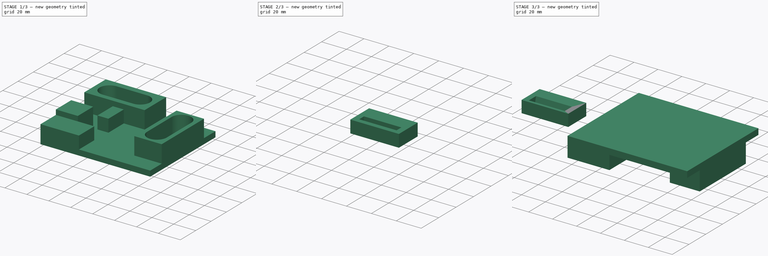
[diagram: build sequence overview — one tinted view per stage of 3, left to right]
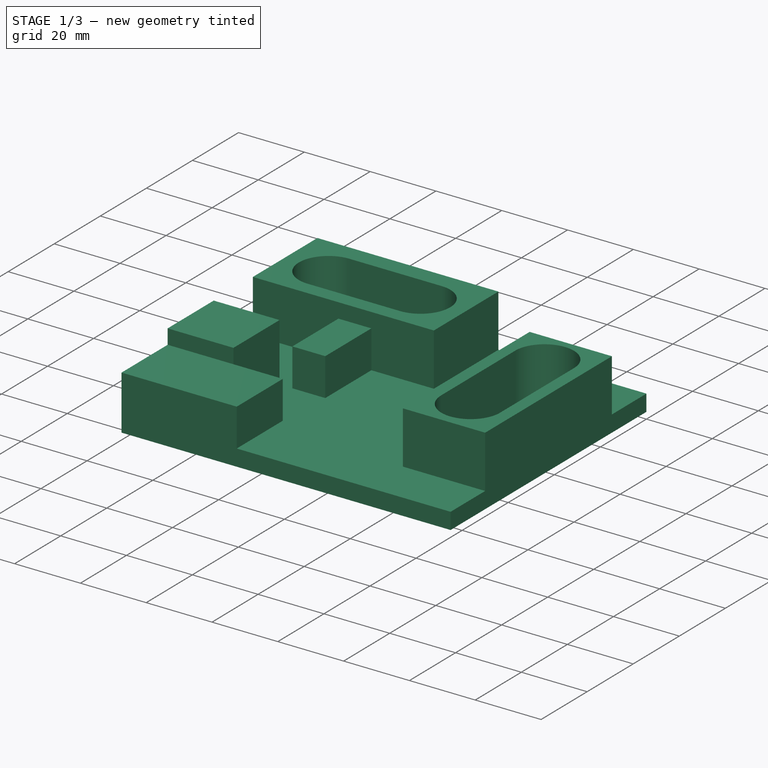
[diagram: stage 1 of 3 — iso view after this stage's code; geometry added in this stage tinted green]
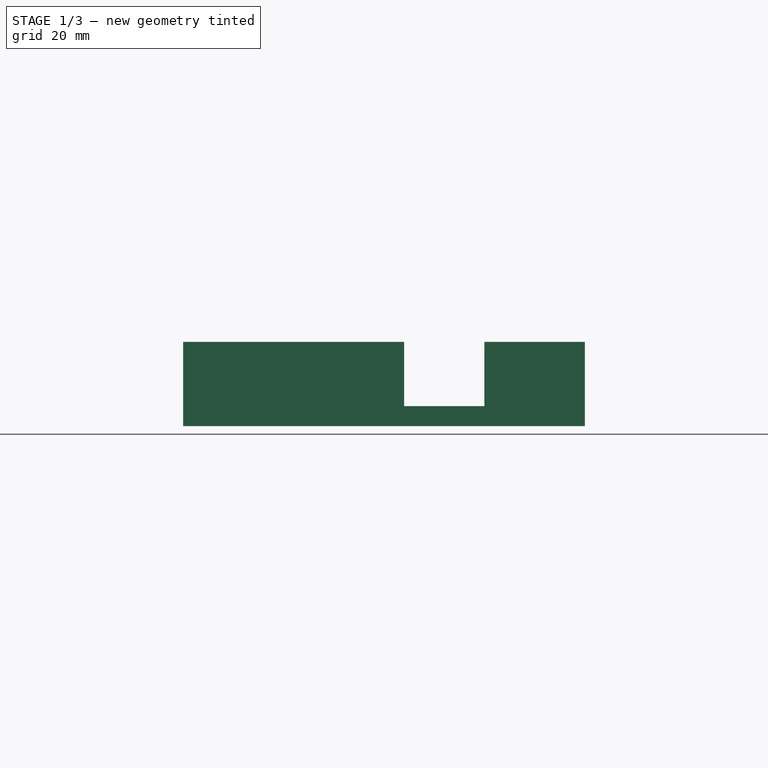
[diagram: stage 1 of 3 — front view after this stage's code; geometry added in this stage tinted green]
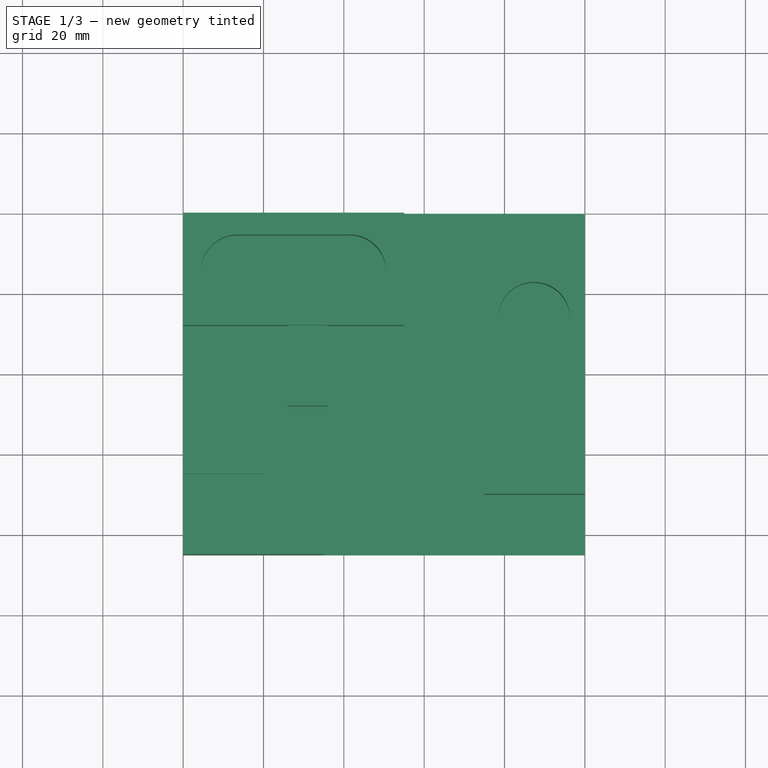
[diagram: stage 1 of 3 — top view after this stage's code; geometry added in this stage tinted green]
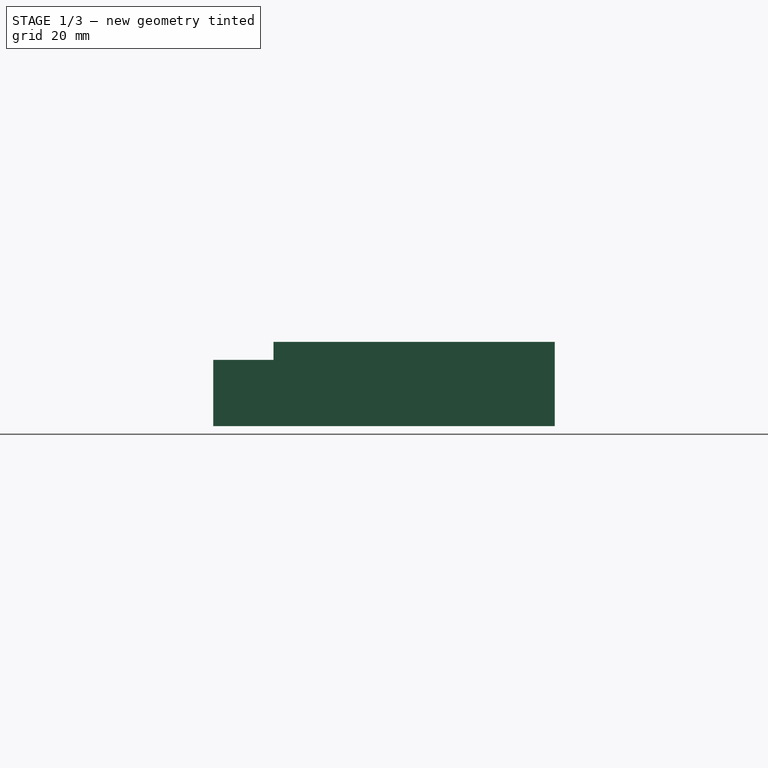
[diagram: stage 1 of 3 — right view after this stage's code; geometry added in this stage tinted green]
FCSTD DOCUMENT  (FreeCAD 0.19R24276 (Git))
Label: SMC Gateway Expansion soldering stand
License: All rights reserved
LicenseURL: http://en.wikipedia.org/wiki/All_rights_reserved
objects: Sketcher::SketchObject×5, PartDesign::Pad×4, PartDesign::Body×2, Part::Mirroring×2, PartDesign::Pocket×1, PartDesign::Chamfer×1
note: 21 computed .brp shape members not serialized (recipe doc carries the construction recipe); baked Part::Feature solids carry a one-line shape summary decoded from their .brp

FEATURE [Sketcher::SketchObject] Sketch
  FullyConstrained = true
  MapMode = 5
  Support = -> [XY_Plane]
  sketch-geometry (4):
    g0: LineSegment StartX=0 StartY=0 StartZ=0 EndX=100 EndY=0 EndZ=0
    g1: LineSegment StartX=100 StartY=0 StartZ=0 EndX=100 EndY=-85 EndZ=0
    g2: LineSegment StartX=100 StartY=-85 StartZ=0 EndX=0 EndY=-85 EndZ=0
    g3: LineSegment StartX=0 StartY=-85 StartZ=0 EndX=0 EndY=0 EndZ=0
  constraints (11):
    c: Coincident(g0,g1)
    c: Coincident(g1,g2)
    c: Coincident(g2,g3)
    c: Coincident(g3,g0)
    c: Horizontal(g0)
    c: Horizontal(g2)
    c: Vertical(g1)
    c: Vertical(g3)
    c: Coincident(g0,g-1)
    c: Distance(g0) = 100
    c: Distance(g1) = 85
FEATURE [PartDesign::Pad] Pad
  Direction = (1,1,1)
  Length = 5
  Length2 = 100
  Profile = -> Sketch
  Reversed = true
  Type = 0
FEATURE [Sketcher::SketchObject] Sketch001
  ExternalGeometry = -> [Pad]
  FullyConstrained = false
  MapMode = 5
  Support = -> [XY_Plane]
  sketch-geometry (20):
    g0: LineSegment StartX=0 StartY=0 StartZ=0 EndX=55 EndY=0 EndZ=0
    g1: LineSegment StartX=55 StartY=0 StartZ=0 EndX=55 EndY=-28 EndZ=0
    g2: LineSegment StartX=55 StartY=-28 StartZ=0 EndX=0 EndY=-28 EndZ=0
    g3: LineSegment StartX=0 StartY=-28 StartZ=0 EndX=0 EndY=0 EndZ=0
    g4: LineSegment StartX=75 StartY=-15 StartZ=0 EndX=100 EndY=-15 EndZ=0
    g5: LineSegment StartX=100 StartY=-15 StartZ=0 EndX=100 EndY=-70 EndZ=0
    g6: LineSegment StartX=100 StartY=-70 StartZ=0 EndX=75 EndY=-70 EndZ=0
    g7: LineSegment StartX=75 StartY=-70 StartZ=0 EndX=75 EndY=-15 EndZ=0
    g8: LineSegment StartX=0 StartY=-45 StartZ=0 EndX=20 EndY=-45 EndZ=0
    g9: LineSegment StartX=20 StartY=-45 StartZ=0 EndX=20 EndY=-65 EndZ=0
    g10: LineSegment StartX=20 StartY=-65 StartZ=0 EndX=0 EndY=-65 EndZ=0
    g11: LineSegment StartX=0 StartY=-65 StartZ=0 EndX=0 EndY=-45 EndZ=0
    g12: ArcOfCircle CenterX=13.4924 CenterY=-14.4585 CenterZ=0 NormalX=0 NormalY=0 NormalZ=1 AngleXU=0 Radius=9 StartAngle=1.5708 EndAngle=4.71239
    g13: ArcOfCircle CenterX=41.4924 CenterY=-14.4585 CenterZ=0 NormalX=0 NormalY=0 NormalZ=1 AngleXU=0 Radius=9 StartAngle=4.71239 EndAngle=7.85398
    g14: LineSegment StartX=13.4924 StartY=-23.4585 StartZ=0 EndX=41.4924 EndY=-23.4585 EndZ=0
    g15: LineSegment StartX=13.4924 StartY=-5.45847 StartZ=0 EndX=41.4924 EndY=-5.45847 EndZ=0
    g16: ArcOfCircle CenterX=87.3434 CenterY=-26.1755 CenterZ=0 NormalX=0 NormalY=0 NormalZ=1 AngleXU=0 Radius=8.93589 StartAngle=2e-16 EndAngle=3.14159
    g17: ArcOfCircle CenterX=87.3434 CenterY=-58.1977 CenterZ=0 NormalX=0 NormalY=0 NormalZ=1 AngleXU=0 Radius=8.93589 StartAngle=3.14159 EndAngle=6.28319
    g18: LineSegment StartX=78.4075 StartY=-26.1755 StartZ=0 EndX=78.4075 EndY=-58.1977 EndZ=0
    g19: LineSegment StartX=96.2793 StartY=-26.1755 StartZ=0 EndX=96.2793 EndY=-58.1977 EndZ=0
  constraints (49):
    c: Coincident(g0,g1)
    c: Coincident(g1,g2)
    c: Coincident(g2,g3)
    c: Coincident(g3,g0)
    c: Horizontal(g0)
    c: Horizontal(g2)
    c: Vertical(g1)
    c: Vertical(g3)
    c: Coincident(g0,g-1)
    c: Distance(g0) = 55
    c: Distance(g1) = 28
    c: Coincident(g4,g5)
    c: Coincident(g5,g6)
    c: Coincident(g6,g7)
    c: Coincident(g7,g4)
    c: Horizontal(g4)
    c: Horizontal(g6)
    c: Vertical(g5)
    c: Vertical(g7)
    c: DistanceY(g4,g-3) = 15
    c: Distance(g5) = 55
    c: Distance(g6) = 25
    c: Vertical(g-3,g4)
    c: Coincident(g8,g9)
    c: Coincident(g9,g10)
    c: Coincident(g10,g11)
    c: Coincident(g11,g8)
    c: Horizontal(g8)
    c: Horizontal(g10)
    c: Vertical(g9)
    c: Vertical(g11)
    c: PointOnObject(g8,g-2)
    c: Distance(g8) = 20
    c: Distance(g9) = 20
    c: DistanceY(g8,g0) = 45
    c: Tangent(g12,g15) = 1.5708
    c: Tangent(g12,g14) = -1.5708
    c: Tangent(g14,g13) = -1.5708
    c: Tangent(g15,g13) = 1.5708
    c: Horizontal(g14)
    c: Equal(g12,g13)
    c: Distance(g12,g12) = 18
    c: Distance(g12,g13) = 28
    c: Tangent(g16,g19) = 1.5708
    c: Tangent(g16,g18) = -1.5708
    c: Tangent(g18,g17) = -1.5708
    c: Tangent(g19,g17) = 1.5708
    c: Vertical(g18)
    c: Equal(g16,g17)
FEATURE [PartDesign::Pad] Pad001
  BaseFeature = -> Pad
  Direction = (1,1,1)
  Length = 16
  Length2 = 100
  Profile = -> Sketch001
  Type = 0
FEATURE [Sketcher::SketchObject] Sketch002
  ExternalGeometry = -> [Pad001]
  FullyConstrained = true
  MapMode = 5
  Support = -> [XY_Plane]
  sketch-geometry (8):
    g0: LineSegment StartX=0 StartY=-65 StartZ=0 EndX=35 EndY=-65 EndZ=0
    g1: LineSegment StartX=35 StartY=-65 StartZ=0 EndX=35 EndY=-85 EndZ=0
    g2: LineSegment StartX=35 StartY=-85 StartZ=0 EndX=0 EndY=-85 EndZ=0
    g3: LineSegment StartX=0 StartY=-85 StartZ=0 EndX=0 EndY=-65 EndZ=0
    g4: LineSegment StartX=26 StartY=-28 StartZ=0 EndX=36 EndY=-28 EndZ=0
    g5: LineSegment StartX=36 StartY=-28 StartZ=0 EndX=36 EndY=-48 EndZ=0
    g6: LineSegment StartX=36 StartY=-48 StartZ=0 EndX=26 EndY=-48 EndZ=0
    g7: LineSegment StartX=26 StartY=-48 StartZ=0 EndX=26 EndY=-28 EndZ=0
  constraints (23):
    c: Coincident(g0,g1)
    c: Coincident(g1,g2)
    c: Coincident(g2,g3)
    c: Coincident(g3,g0)
    c: Horizontal(g0)
    c: Horizontal(g2)
    c: Vertical(g1)
    c: Vertical(g3)
    c: Coincident(g-3,g2)
    c: Distance(g2) = 35
    c: Distance(g1) = 20
    c: Coincident(g4,g5)
    c: Coincident(g5,g6)
    c: Coincident(g6,g7)
    c: Coincident(g7,g4)
    c: Horizontal(g4)
    c: Horizontal(g6)
    c: Vertical(g5)
    c: Vertical(g7)
    c: DistanceX(g-1,g4) = 26
    c: DistanceY(g6,g-1) = 48
    c: Distance(g5) = 20
    c: Distance(g4) = 10
FEATURE [PartDesign::Pad] Pad002
  BaseFeature = -> Pad001
  Direction = (1,1,1)
  Length = 11.5
  Length2 = 100
  Profile = -> Sketch002
  Type = 0
  expr: Length = 7.5 + 4
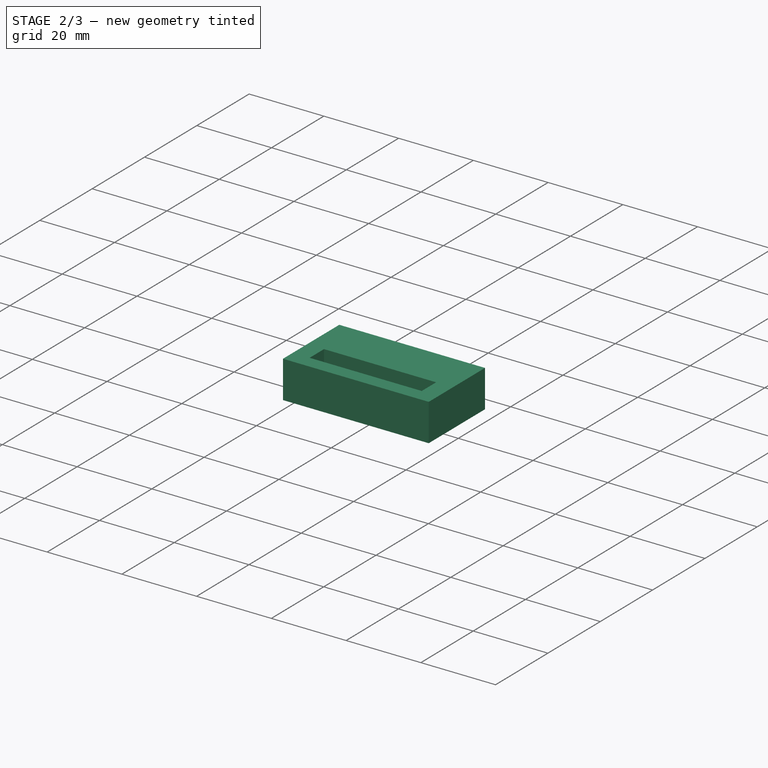
[diagram: stage 2 of 3 — iso view after this stage's code; geometry added in this stage tinted green]
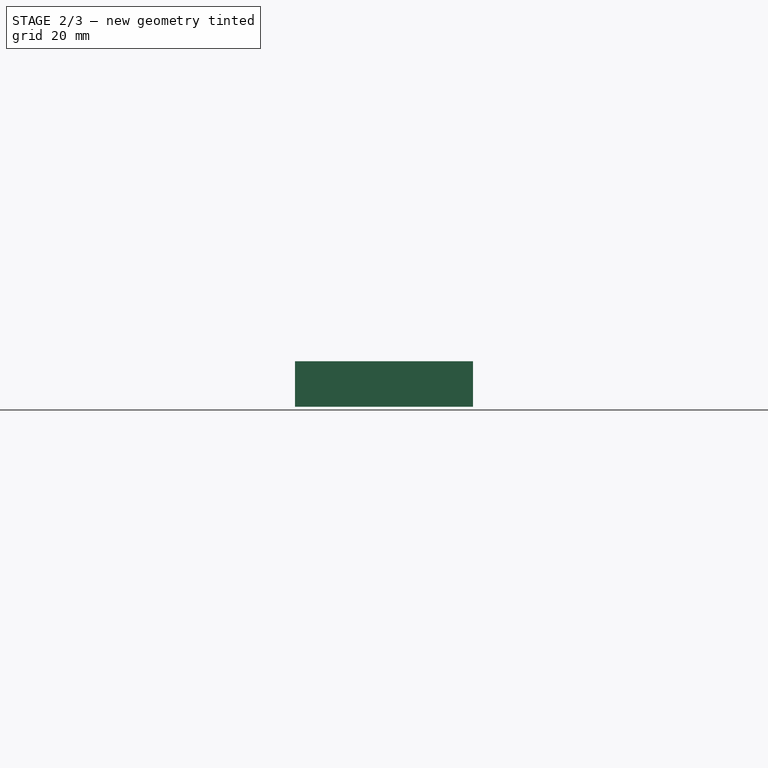
[diagram: stage 2 of 3 — front view after this stage's code; geometry added in this stage tinted green]
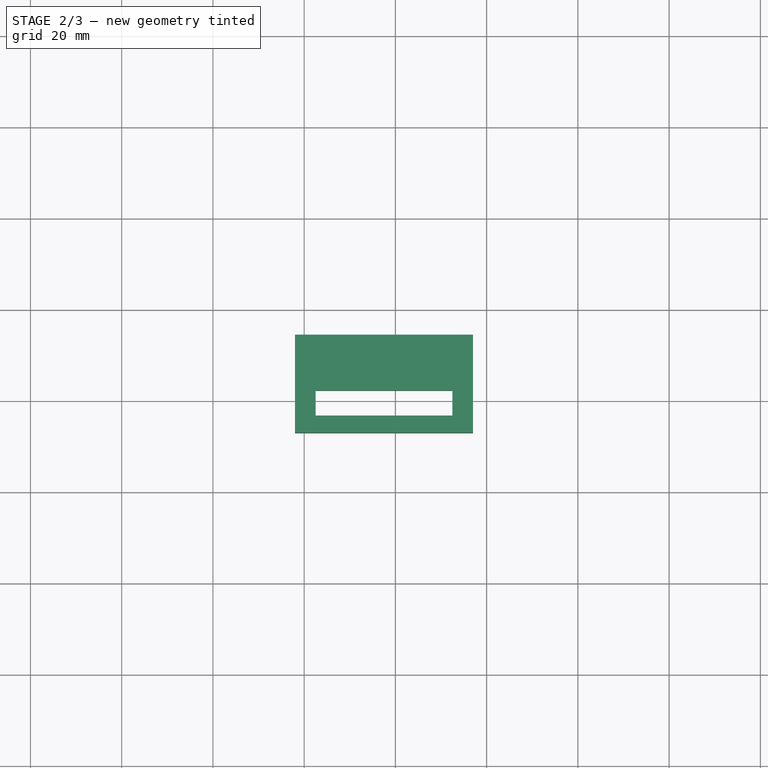
[diagram: stage 2 of 3 — top view after this stage's code; geometry added in this stage tinted green]
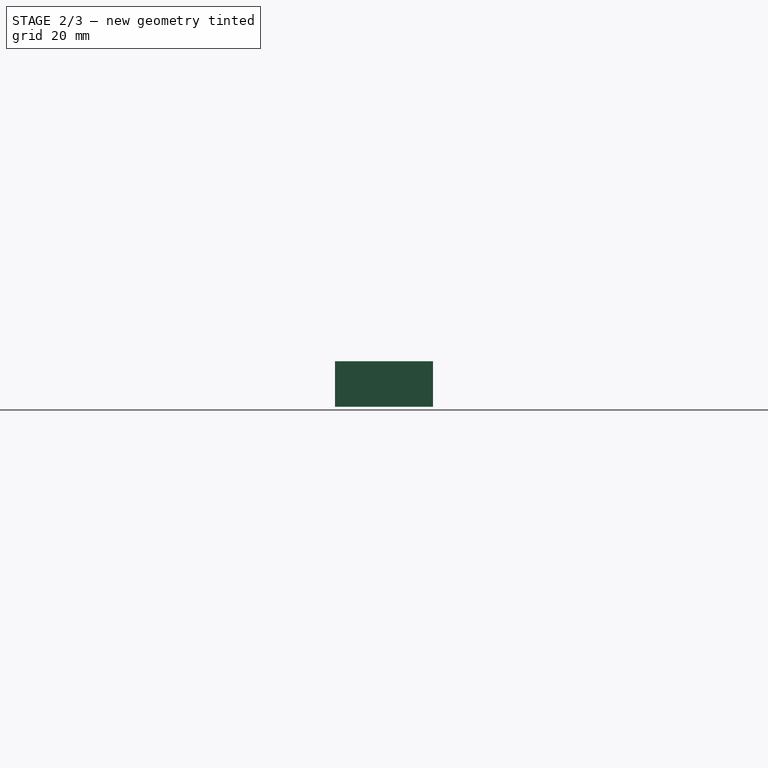
[diagram: stage 2 of 3 — right view after this stage's code; geometry added in this stage tinted green]
FEATURE [Sketcher::SketchObject] Sketch003
  AttachmentOffset = pos=(0,0,13) rot=(0,0,1;0rad)
  ExternalGeometry = -> [Pad002]
  FullyConstrained = false
  MapMode = 5
  Placement = pos=(0,0,13) rot=(0,0,1;0rad)
  Support = -> [XY_Plane001]
  sketch-geometry (10):
    g0: LineSegment StartX=37 StartY=-87 StartZ=0 EndX=-2 EndY=-87 EndZ=0
    g1: LineSegment StartX=-2 StartY=-87 StartZ=0 EndX=-2 EndY=-63.5975 EndZ=0
    g2: LineSegment StartX=37 StartY=-65.5 StartZ=0 EndX=37 EndY=-87 EndZ=0
    g3: LineSegment StartX=-2 StartY=-65.5 StartZ=0 EndX=37 EndY=-65.5 EndZ=0
    g4: LineSegment StartX=-2 StartY=-87 StartZ=0 EndX=-2 EndY=-65.5 EndZ=0
    g5: LineSegment StartX=2.5 StartY=-77.75 StartZ=0 EndX=32.5 EndY=-77.75 EndZ=0
    g6: LineSegment StartX=32.5 StartY=-77.75 StartZ=0 EndX=32.5 EndY=-83.25 EndZ=0
    g7: LineSegment StartX=32.5 StartY=-83.25 StartZ=0 EndX=2.5 EndY=-83.25 EndZ=0
    g8: LineSegment StartX=2.5 StartY=-83.25 StartZ=0 EndX=2.5 EndY=-77.75 EndZ=0
    g9: GeomPoint X=2.5 Y=-80.5 Z=0
  constraints (27):
    c: Coincident(g0,g1)
    c: Horizontal(g0)
    c: Vertical(g1)
    c: DistanceX(g0,g-4) = 2
    c: DistanceX(g-3,g2) = 2
    c: DistanceY(g0,g-4) = 2
    c: PointOnObject(g3,g1)
    c: DistanceY(g3,g-5) = 0.5
    c: Coincident(g2,g0)
    c: Coincident(g4,g0)
    c: Coincident(g5,g6)
    c: Coincident(g6,g7)
    c: Coincident(g7,g8)
    c: Coincident(g8,g5)
    c: Horizontal(g5)
    c: Horizontal(g7)
    c: Vertical(g6)
    c: Vertical(g8)
    c: DistanceY(g7,g5) = 5.5
    c: Symmetric(g5,g7,g9)
    c: DistanceX(g-4,g7) = 2.5
    c: DistanceX(g5,g-3) = 2.5
    c: Horizontal(g3)
    c: Coincident(g3,g4)
    c: Vertical(g2)
    c: DistanceY(g-4,g9) = 4.5
    c: Coincident(g2,g3)
FEATURE [PartDesign::Pad] Pad003
  Direction = (1,1,1)
  Length = 10
  Length2 = 100
  Profile = -> Sketch003
  Type = 0
FEATURE [Sketcher::SketchObject] Sketch004
  AttachmentOffset = pos=(0,0,15.5) rot=(0,0,1;0rad)
  ExternalGeometry = -> [Pad003]
  FullyConstrained = true
  MapMode = 5
  Placement = pos=(0,0,15.5) rot=(0,0,1;0rad)
  Support = -> [XY_Plane001]
  sketch-geometry (4):
    g0: LineSegment StartX=-1 StartY=-86 StartZ=0 EndX=35 EndY=-86 EndZ=0
    g1: LineSegment StartX=35 StartY=-86 StartZ=0 EndX=35 EndY=-65.5 EndZ=0
    g2: LineSegment StartX=35 StartY=-65.5 StartZ=0 EndX=-1 EndY=-65.5 EndZ=0
    g3: LineSegment StartX=-1 StartY=-65.5 StartZ=0 EndX=-1 EndY=-86 EndZ=0
  constraints (12):
    c: Coincident(g0,g1)
    c: Coincident(g1,g2)
    c: Coincident(g2,g3)
    c: Coincident(g3,g0)
    c: Horizontal(g0)
    c: Horizontal(g2)
    c: Vertical(g1)
    c: Vertical(g3)
    c: DistanceX(g-3,g0) = 1
    c: DistanceY(g-3,g0) = 1
    c: Distance(g0) = 36
    c: Distance(g1) = 20.5
FEATURE [PartDesign::Pocket] Pocket
  BaseFeature = -> Pad003
  Length = 10
  Length2 = 100
  Profile = -> Sketch004
  Type = 0
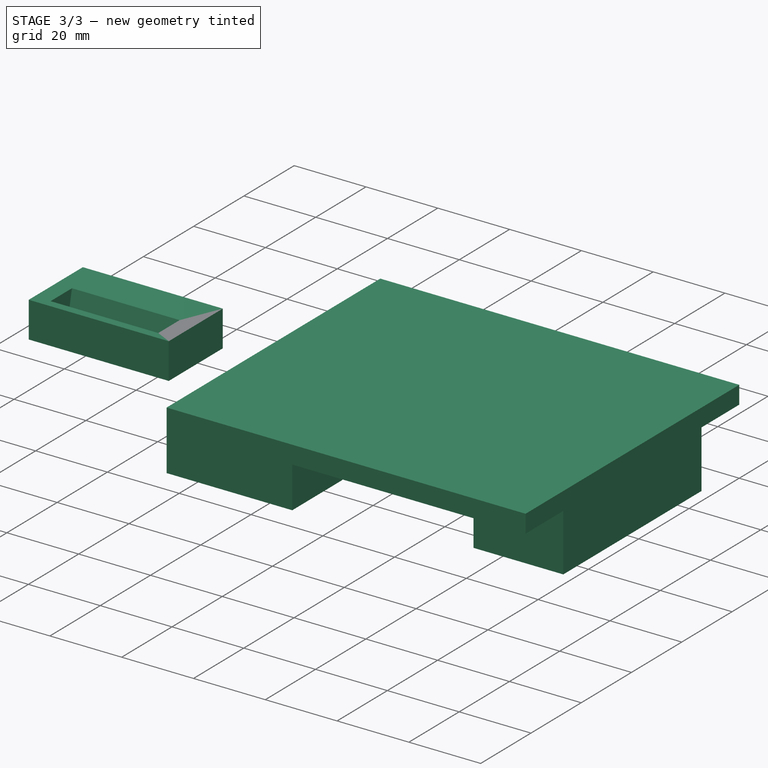
[diagram: stage 3 of 3 — iso view after this stage's code; geometry added in this stage tinted green]
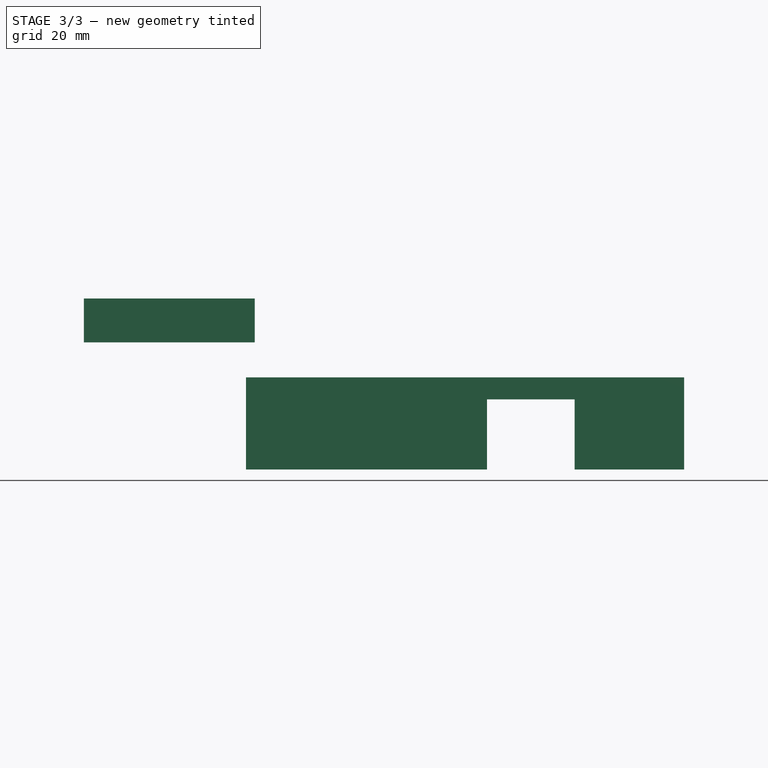
[diagram: stage 3 of 3 — front view after this stage's code; geometry added in this stage tinted green]
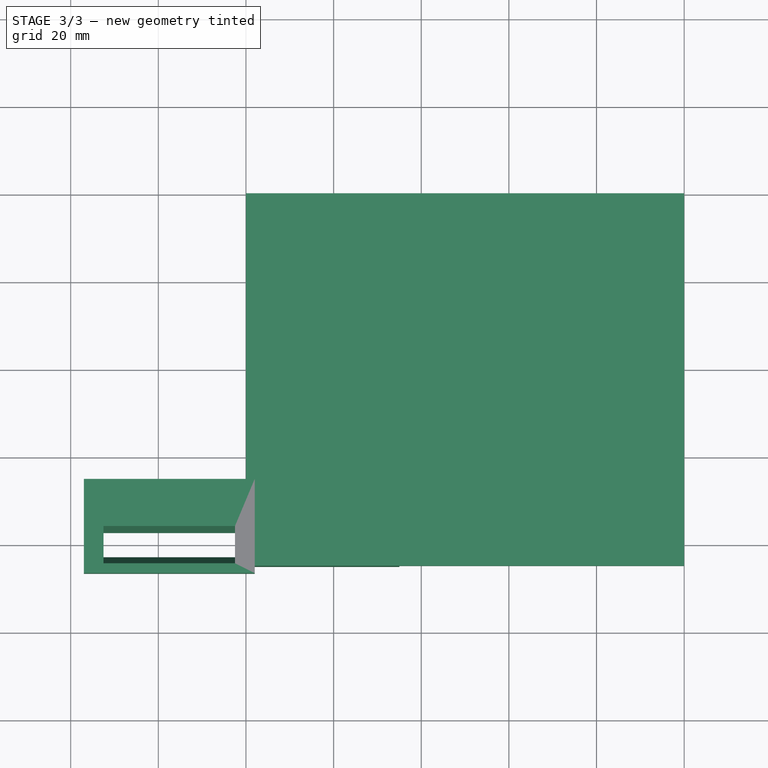
[diagram: stage 3 of 3 — top view after this stage's code; geometry added in this stage tinted green]
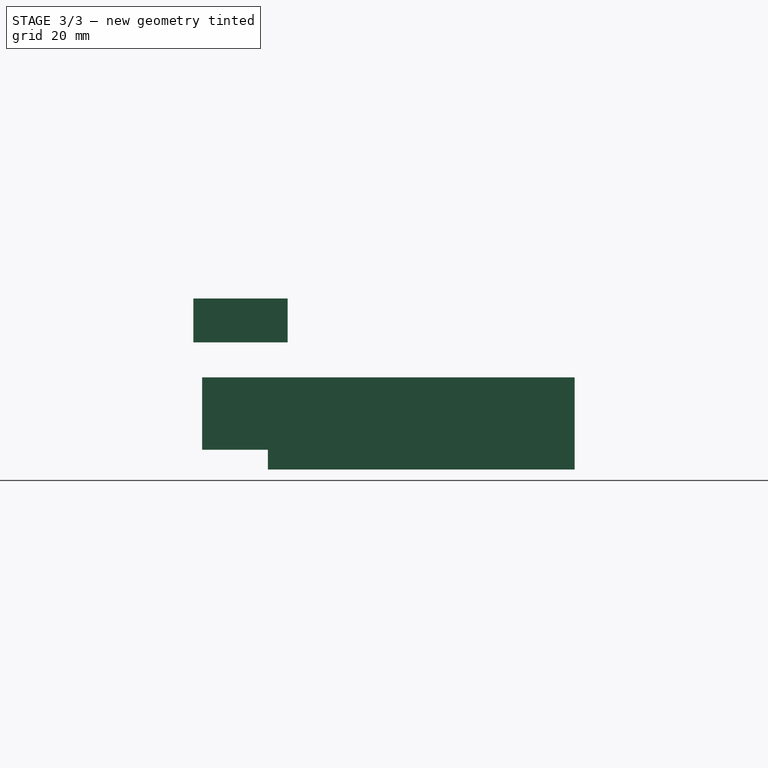
[diagram: stage 3 of 3 — right view after this stage's code; geometry added in this stage tinted green]
FEATURE [PartDesign::Body] Body
  Origin = -> Origin
  Tip = -> Pad002
FEATURE [Part::Mirroring] Part__Mirroring  label="Pad002 (Mirror #1)"
  Base = (0,0,0)
  Normal = (0,0,1)
  Source = -> Pad002
FEATURE [PartDesign::Chamfer] Chamfer
  Angle = 45
  Base = -> Pocket [Edge20,Edge18]
  BaseFeature = -> Pocket
  ChamferType = 1
  FlipDirection = false
  Size = 1.5
  Size2 = 7
  SupportTransform = false
FEATURE [PartDesign::Body] Body001
  Group = -> [Sketch003,Pad003,Sketch004,Pocket,Chamfer]
  Origin = -> Origin001
  Tip = -> Chamfer
FEATURE [Part::Mirroring] Part__Mirroring001  label="Chamfer (Mirror #2)"
  Base = (0,0,0)
  Normal = (1,0,0)
  Source = -> Chamfer
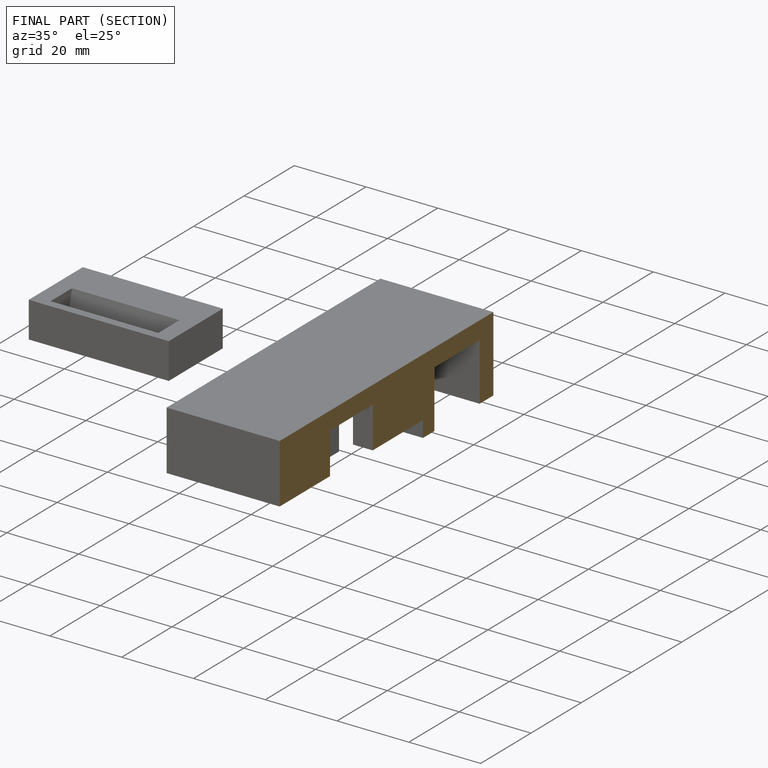
[diagram: finished part — half-section view (interior)]
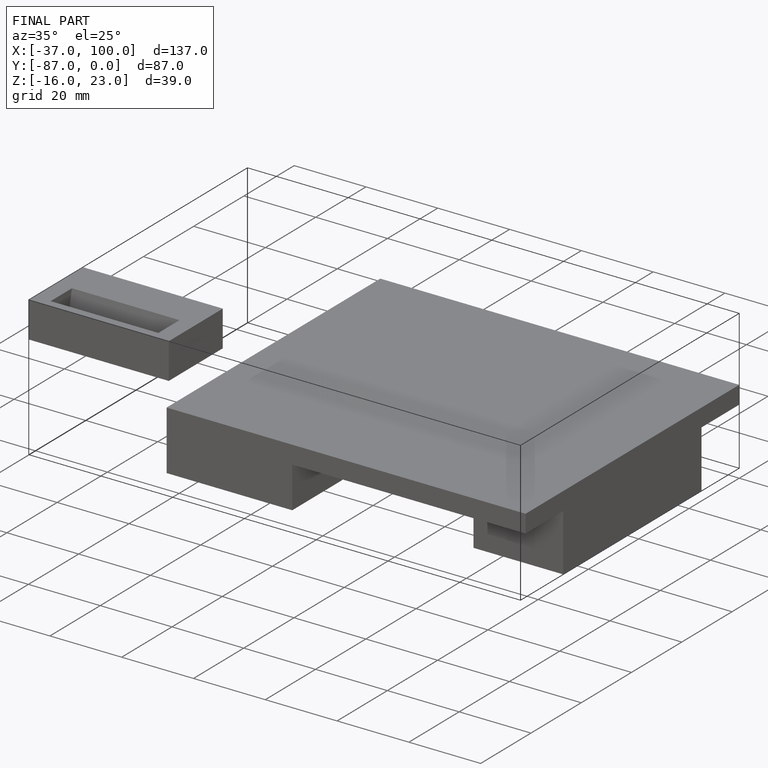
[diagram: finished part — iso view with bounding-box wireframe]
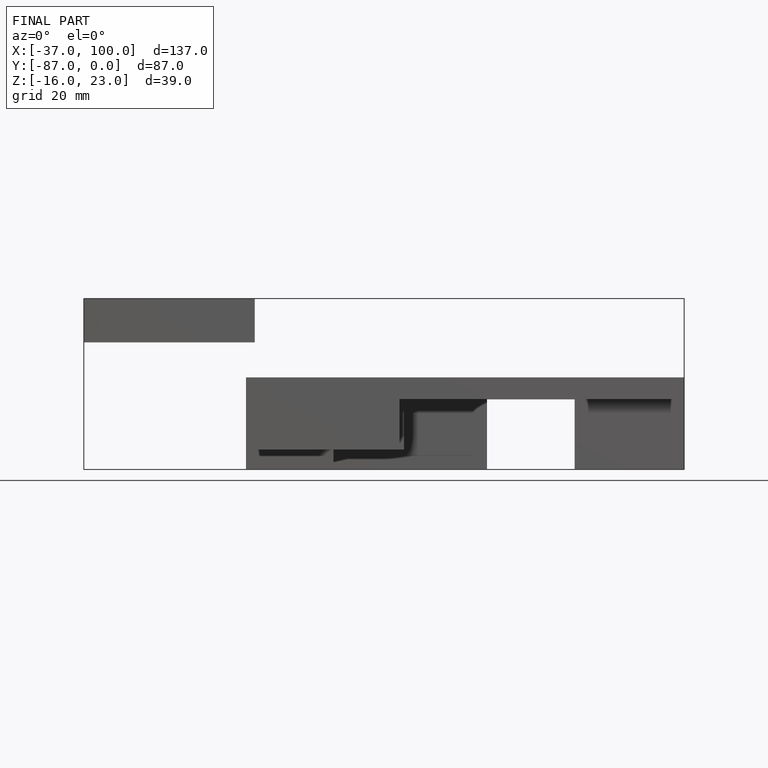
[diagram: finished part — front view with bounding-box wireframe]
